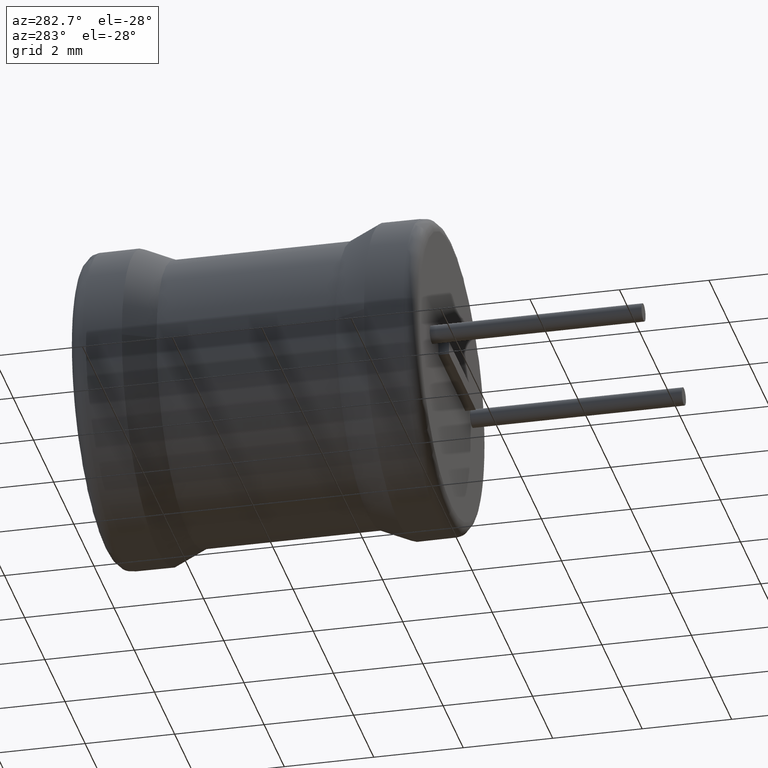
[diagram: clean part render]
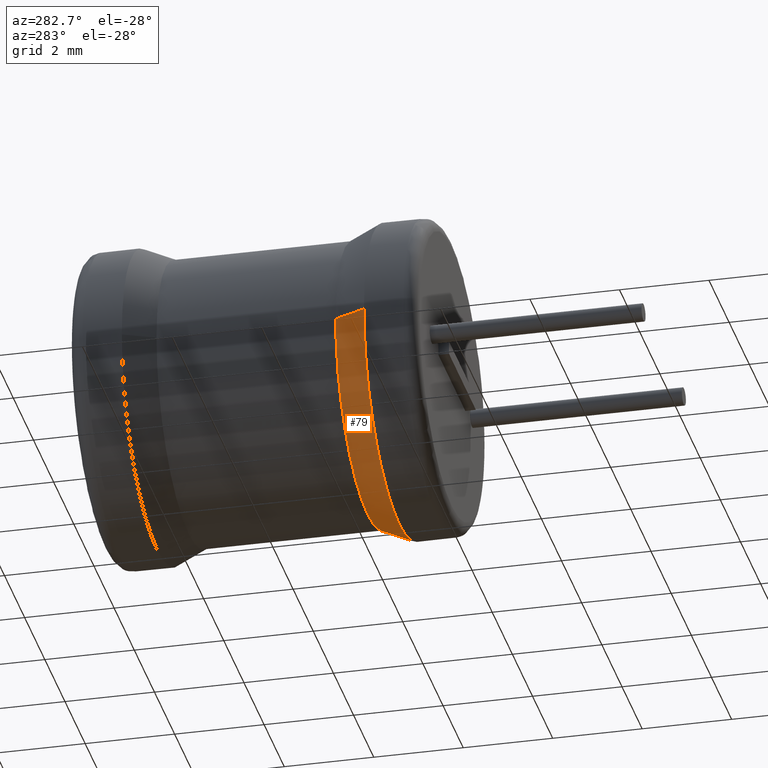
[diagram: same view with one face highlighted and labeled with its STEP entity id]
A machine part, auxiliary view. The second image highlights one B-rep face of the part: STEP entity #79.
In plain terms, the highlighted conical surface has half-angle 24.106 deg.
Its self-contained STEP definition (entity closure, byte-faithful):
#61 = DIRECTION ( 'NONE',  ( 0.4084229202775974100, -0.9127928123029448400, 0.0000000000000000000 ) ) ;
#79 = ADVANCED_FACE ( 'NONE', ( #1819 ), #983, .T. ) ;
#102 = DIRECTION ( 'NONE',  ( 8.070266646938738300E-018, -1.000000000000000000, -0.0000000000000000000 ) ) ;
#120 = VECTOR ( 'NONE', #61, 1000.000000000000100 ) ;
#203 = AXIS2_PLACEMENT_3D ( 'NONE', #953, #2307, #2793 ) ;
#204 = ORIENTED_EDGE ( 'NONE', *, *, #1746, .T. ) ;
#255 = EDGE_LOOP ( 'NONE', ( #1177, #204, #396, #1827, #2688 ) ) ;
#318 = LINE ( 'NONE', #1881, #120 ) ;
#367 = EDGE_CURVE ( 'NONE', #475, #1894, #318, .T. ) ;
#396 = ORIENTED_EDGE ( 'NONE', *, *, #367, .T. ) ;
#475 = VERTEX_POINT ( 'NONE', #2609 ) ;
#514 = CIRCLE ( 'NONE', #1390, 3.500000000000000400 ) ;
#679 = VERTEX_POINT ( 'NONE', #1611 ) ;
#749 = CIRCLE ( 'NONE', #203, 3.184999999999999600 ) ;
#861 = VERTEX_POINT ( 'NONE', #2344 ) ;
#875 = DIRECTION ( 'NONE',  ( -0.4084229202775974100, -0.9127928123029448400, 5.001738220163742900E-017 ) ) ;
#953 = CARTESIAN_POINT ( 'NONE',  ( -1.517210129624485300E-017, 1.880000000000003400, 0.0000000000000000000 ) ) ;
#983 = CONICAL_SURFACE ( 'NONE', #2459, 3.500000000000000400, 0.4207256408450433800 ) ;
#1088 = DIRECTION ( 'NONE',  ( 1.000000000000000000, 0.0000000000000000000, 0.0000000000000000000 ) ) ;
#1177 = ORIENTED_EDGE ( 'NONE', *, *, #1650, .F. ) ;
#1233 = CARTESIAN_POINT ( 'NONE',  ( -9.490633576799981000E-018, 1.176000000000003500, 0.0000000000000000000 ) ) ;
#1279 = DIRECTION ( 'NONE',  ( 8.070266646938738300E-018, -1.000000000000000000, -0.0000000000000000000 ) ) ;
#1390 = AXIS2_PLACEMENT_3D ( 'NONE', #1233, #102, #1711 ) ;
#1555 = VECTOR ( 'NONE', #875, 1000.000000000000100 ) ;
#1611 = CARTESIAN_POINT ( 'NONE',  ( -3.184999999999999600, 1.880000000000003400, 3.900500055284319300E-016 ) ) ;
#1650 = EDGE_CURVE ( 'NONE', #679, #2126, #2525, .T. ) ;
#1711 = DIRECTION ( 'NONE',  ( 1.000000000000000000, 0.0000000000000000000, 0.0000000000000000000 ) ) ;
#1746 = EDGE_CURVE ( 'NONE', #679, #475, #749, .T. ) ;
#1790 = CARTESIAN_POINT ( 'NONE',  ( -3.500000000000000400, 1.176000000000003500, 4.286263797015737100E-016 ) ) ;
#1819 = FACE_OUTER_BOUND ( 'NONE', #255, .T. ) ;
#1827 = ORIENTED_EDGE ( 'NONE', *, *, #2692, .F. ) ;
#1830 = CARTESIAN_POINT ( 'NONE',  ( -9.490633576799981000E-018, 1.176000000000003500, 0.0000000000000000000 ) ) ;
#1881 = CARTESIAN_POINT ( 'NONE',  ( 3.500000000000000400, 1.176000000000003500, 0.0000000000000000000 ) ) ;
#1894 = VERTEX_POINT ( 'NONE', #2150 ) ;
#2058 = DIRECTION ( 'NONE',  ( 8.070266646938738300E-018, -1.000000000000000000, -0.0000000000000000000 ) ) ;
#2126 = VERTEX_POINT ( 'NONE', #2932 ) ;
#2134 = CIRCLE ( 'NONE', #2168, 3.500000000000000400 ) ;
#2150 = CARTESIAN_POINT ( 'NONE',  ( 3.500000000000000400, 1.176000000000003500, 0.0000000000000000000 ) ) ;
#2168 = AXIS2_PLACEMENT_3D ( 'NONE', #1830, #2058, #2287 ) ;
#2287 = DIRECTION ( 'NONE',  ( 1.000000000000000000, 0.0000000000000000000, 0.0000000000000000000 ) ) ;
#2307 = DIRECTION ( 'NONE',  ( 8.070266646938738300E-018, -1.000000000000000000, -0.0000000000000000000 ) ) ;
#2344 = CARTESIAN_POINT ( 'NONE',  ( 1.504632769052528000E-033, 1.176000000000003500, -3.500000000000000900 ) ) ;
#2459 = AXIS2_PLACEMENT_3D ( 'NONE', #2667, #1279, #1088 ) ;
#2525 = LINE ( 'NONE', #1790, #1555 ) ;
#2609 = CARTESIAN_POINT ( 'NONE',  ( 3.184999999999999600, 1.880000000000003400, 0.0000000000000000000 ) ) ;
#2613 = EDGE_CURVE ( 'NONE', #2126, #861, #2134, .T. ) ;
#2667 = CARTESIAN_POINT ( 'NONE',  ( -9.490633576799981000E-018, 1.176000000000003500, 0.0000000000000000000 ) ) ;
#2688 = ORIENTED_EDGE ( 'NONE', *, *, #2613, .F. ) ;
#2692 = EDGE_CURVE ( 'NONE', #861, #1894, #514, .T. ) ;
#2793 = DIRECTION ( 'NONE',  ( 1.000000000000000000, 0.0000000000000000000, 0.0000000000000000000 ) ) ;
#2932 = CARTESIAN_POINT ( 'NONE',  ( -3.500000000000000400, 1.176000000000003500, 4.286263797015737100E-016 ) ) ;